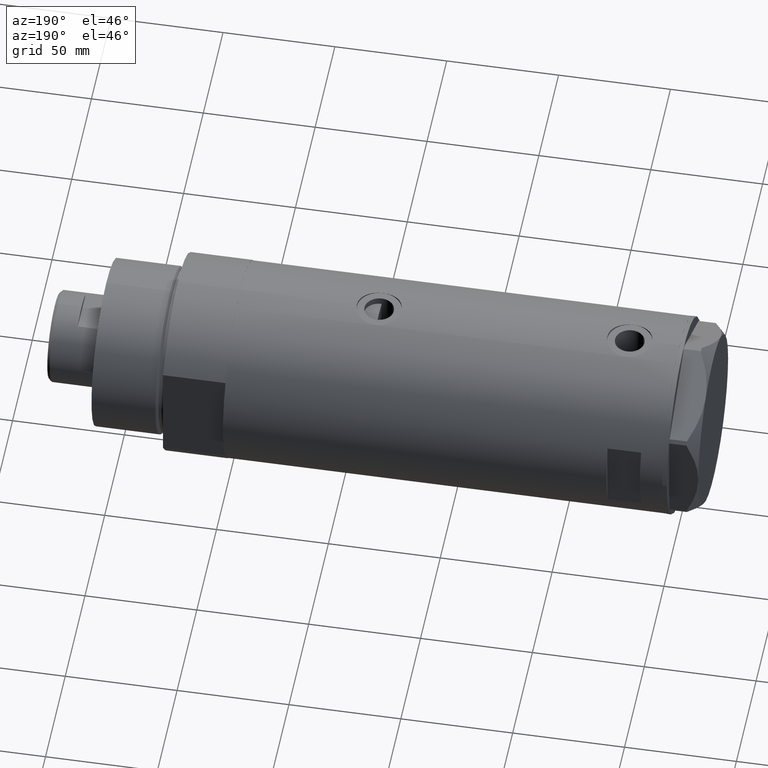
[diagram: clean part render]
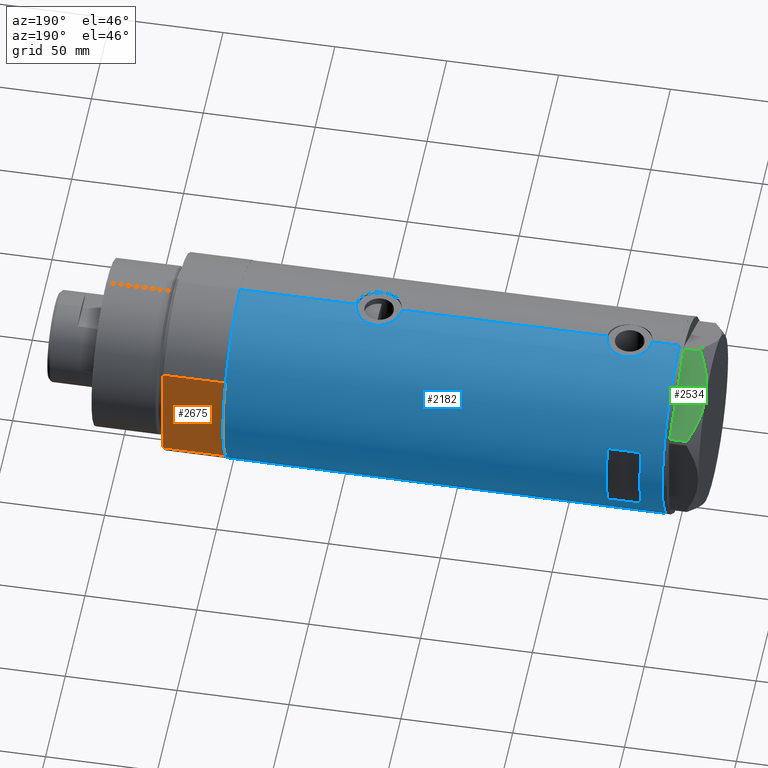
[diagram: same view with three faces highlighted in distinct colors, each labeled with its STEP entity id]
A machine part, auxiliary view with three faces highlighted in distinct colors.
Their STEP definitions:

[orange] entity #2675 — the highlighted planar face has unit normal (0, -1, -0).
#75 = ORIENTED_EDGE ( 'NONE', *, *, #2817, .F. ) ;
#107 = VECTOR ( 'NONE', #1879, 1000.000000000000000 ) ;
#120 = DIRECTION ( 'NONE',  ( 1.000000000000000000, 0.000000000000000000, 0.000000000000000000 ) ) ;
#163 = VECTOR ( 'NONE', #551, 1000.000000000000000 ) ;
#174 = VERTEX_POINT ( 'NONE', #4392 ) ;
#204 = ORIENTED_EDGE ( 'NONE', *, *, #4291, .T. ) ;
#245 = VECTOR ( 'NONE', #426, 1000.000000000000000 ) ;
#421 = CARTESIAN_POINT ( 'NONE',  ( -23.01629857296780557, 37.50000000000000000, 0.000000000000000000 ) ) ;
#426 = DIRECTION ( 'NONE',  ( 1.000000000000000000, 0.000000000000000000, 0.000000000000000000 ) ) ;
#444 = PLANE ( 'NONE',  #1271 ) ;
#459 = CARTESIAN_POINT ( 'NONE',  ( -23.01629857296780557, 37.50000000000000000, 0.000000000000000000 ) ) ;
#503 = LINE ( 'NONE', #2320, #3986 ) ;
#530 = ORIENTED_EDGE ( 'NONE', *, *, #2639, .T. ) ;
#536 = VECTOR ( 'NONE', #627, 1000.000000000000000 ) ;
#551 = DIRECTION ( 'NONE',  ( 1.000000000000000000, 0.000000000000000000, 0.000000000000000000 ) ) ;
#578 = DIRECTION ( 'NONE',  ( -0.000000000000000000, -0.000000000000000000, 1.000000000000000000 ) ) ;
#627 = DIRECTION ( 'NONE',  ( 1.000000000000000000, 0.000000000000000000, 0.000000000000000000 ) ) ;
#659 = CARTESIAN_POINT ( 'NONE',  ( 0.000000000000000000, 37.50000000000000000, 27.89999999999999858 ) ) ;
#931 = ORIENTED_EDGE ( 'NONE', *, *, #1971, .T. ) ;
#947 = CARTESIAN_POINT ( 'NONE',  ( -23.01629857296780557, 37.50000000000000000, 0.000000000000000000 ) ) ;
#1090 = VERTEX_POINT ( 'NONE', #1195 ) ;
#1114 = EDGE_LOOP ( 'NONE', ( #530, #931, #4452, #1641, #75, #2647, #204 ) ) ;
#1195 = CARTESIAN_POINT ( 'NONE',  ( -13.91941090707505957, 37.50000000000000000, 0.000000000000000000 ) ) ;
#1271 = AXIS2_PLACEMENT_3D ( 'NONE', #3640, #2978, #3999 ) ;
#1525 = VERTEX_POINT ( 'NONE', #2234 ) ;
#1610 = VERTEX_POINT ( 'NONE', #2589 ) ;
#1641 = ORIENTED_EDGE ( 'NONE', *, *, #3108, .F. ) ;
#1821 = EDGE_CURVE ( 'NONE', #174, #1090, #2684, .T. ) ;
#1863 = FACE_OUTER_BOUND ( 'NONE', #1114, .T. ) ;
#1879 = DIRECTION ( 'NONE',  ( -0.000000000000000000, -0.000000000000000000, 1.000000000000000000 ) ) ;
#1916 = CARTESIAN_POINT ( 'NONE',  ( -23.01629857296780557, 37.50000000000000000, 27.89999999999999858 ) ) ;
#1971 = EDGE_CURVE ( 'NONE', #2030, #4198, #3983, .T. ) ;
#2006 = VECTOR ( 'NONE', #4274, 1000.000000000000000 ) ;
#2030 = VERTEX_POINT ( 'NONE', #659 ) ;
#2234 = CARTESIAN_POINT ( 'NONE',  ( 23.01629857296780557, 37.50000000000000000, 0.000000000000000000 ) ) ;
#2320 = CARTESIAN_POINT ( 'NONE',  ( 23.01629857296780557, 37.50000000000000000, 0.000000000000000000 ) ) ;
#2554 = VERTEX_POINT ( 'NONE', #3832 ) ;
#2589 = CARTESIAN_POINT ( 'NONE',  ( -23.01629857296780557, 37.50000000000000000, 27.89999999999999858 ) ) ;
#2639 = EDGE_CURVE ( 'NONE', #1610, #2030, #3951, .T. ) ;
#2647 = ORIENTED_EDGE ( 'NONE', *, *, #1821, .F. ) ;
#2675 = ADVANCED_FACE ( 'NONE', ( #1863 ), #444, .F. ) ;
#2684 = LINE ( 'NONE', #947, #2006 ) ;
#2817 = EDGE_CURVE ( 'NONE', #1090, #2554, #3761, .T. ) ;
#2825 = CARTESIAN_POINT ( 'NONE',  ( 23.01629857296780557, 37.50000000000000000, 27.89999999999999858 ) ) ;
#2978 = DIRECTION ( 'NONE',  ( 0.000000000000000000, -1.000000000000000000, 0.000000000000000000 ) ) ;
#3108 = EDGE_CURVE ( 'NONE', #2554, #1525, #3228, .T. ) ;
#3228 = LINE ( 'NONE', #421, #3977 ) ;
#3640 = CARTESIAN_POINT ( 'NONE',  ( -23.01629857296780557, 37.50000000000000000, 0.000000000000000000 ) ) ;
#3761 = LINE ( 'NONE', #4070, #536 ) ;
#3832 = CARTESIAN_POINT ( 'NONE',  ( 13.91941090707505957, 37.50000000000000000, 0.000000000000000000 ) ) ;
#3951 = LINE ( 'NONE', #4311, #245 ) ;
#3977 = VECTOR ( 'NONE', #120, 1000.000000000000000 ) ;
#3983 = LINE ( 'NONE', #1916, #163 ) ;
#3986 = VECTOR ( 'NONE', #578, 1000.000000000000000 ) ;
#3999 = DIRECTION ( 'NONE',  ( 0.000000000000000000, -0.000000000000000000, -1.000000000000000000 ) ) ;
#4070 = CARTESIAN_POINT ( 'NONE',  ( -23.01629857296780557, 37.50000000000000000, 0.000000000000000000 ) ) ;
#4198 = VERTEX_POINT ( 'NONE', #2825 ) ;
#4274 = DIRECTION ( 'NONE',  ( 1.000000000000000000, 0.000000000000000000, 0.000000000000000000 ) ) ;
#4291 = EDGE_CURVE ( 'NONE', #174, #1610, #4349, .T. ) ;
#4311 = CARTESIAN_POINT ( 'NONE',  ( -23.01629857296780557, 37.50000000000000000, 27.89999999999999858 ) ) ;
#4349 = LINE ( 'NONE', #459, #107 ) ;
#4392 = CARTESIAN_POINT ( 'NONE',  ( -23.01629857296780557, 37.50000000000000000, 0.000000000000000000 ) ) ;
#4452 = ORIENTED_EDGE ( 'NONE', *, *, #4536, .F. ) ;
#4536 = EDGE_CURVE ( 'NONE', #1525, #4198, #503, .T. ) ;

[blue] entity #2182 — the highlighted cylindrical surface (partial cylindrical patch) has radius 44 mm, axis along (-1, -0, 0).
#13 = CARTESIAN_POINT ( 'NONE',  ( -43.74833112883977293, 4.708208586952001617, 78.33050383508880543 ) ) ;
#25 = CARTESIAN_POINT ( 'NONE',  ( 43.94229162222111285, 2.275476993733910547, 66.15685535777693360 ) ) ;
#26 = CARTESIAN_POINT ( 'NONE',  ( -43.88968326835893663, 3.132363423941624259, -56.47620767643520168 ) ) ;
#57 = CARTESIAN_POINT ( 'NONE',  ( -43.95549163632549750, 2.014511215452027937, 68.26941044295020333 ) ) ;
#71 = CARTESIAN_POINT ( 'NONE',  ( 42.99303682946563043, 9.360292926890506848, 72.36575779792798357 ) ) ;
#74 = CARTESIAN_POINT ( 'NONE',  ( -43.83576802966639008, 3.813209221108468938, -66.86865490354712449 ) ) ;
#97 = CARTESIAN_POINT ( 'NONE',  ( 43.13962074468734897, 8.660138848900670538, 80.91089741163936822 ) ) ;
#104 = CARTESIAN_POINT ( 'NONE',  ( 15.96871942267132027, 40.99999999999999289, 88.20000000000000284 ) ) ;
#115 = CARTESIAN_POINT ( 'NONE',  ( 43.27871541412904577, 7.937063204555981244, -30.00825002753968107 ) ) ;
#129 = ORIENTED_EDGE ( 'NONE', *, *, #2990, .T. ) ;
#138 = VERTEX_POINT ( 'NONE', #924 ) ;
#146 = CARTESIAN_POINT ( 'NONE',  ( -43.80687348212602217, 4.128385987736840512, -66.61048743310966813 ) ) ;
#153 = FACE_OUTER_BOUND ( 'NONE', #2035, .T. ) ;
#159 = CARTESIAN_POINT ( 'NONE',  ( 43.88297407487991109, 3.222431612395382228, -45.57228202029342157 ) ) ;
#203 = CARTESIAN_POINT ( 'NONE',  ( 42.86396777580258544, 9.934664719553399692, -34.78423800973479274 ) ) ;
#206 = EDGE_CURVE ( 'NONE', #416, #3964, #4369, .T. ) ;
#298 = CARTESIAN_POINT ( 'NONE',  ( 44.00000000000000000, 0.000000000000000000, -98.20000000000000284 ) ) ;
#305 = CARTESIAN_POINT ( 'NONE',  ( -43.59867737633045692, 5.931302618788640402, -63.91249495029889260 ) ) ;
#316 = CARTESIAN_POINT ( 'NONE',  ( 43.97062489912107708, 1.639461988184801156, -26.22985373334014625 ) ) ;
#320 = CIRCLE ( 'NONE', #3407, 44.00000000000000000 ) ;
#336 = CARTESIAN_POINT ( 'NONE',  ( -43.57657963456318839, 6.089610171536609329, -60.47821460419189066 ) ) ;
#339 = CARTESIAN_POINT ( 'NONE',  ( -43.88883895882799635, 3.130924084324101297, 68.78687544251856423 ) ) ;
#355 = CARTESIAN_POINT ( 'NONE',  ( -43.59995593514495482, 5.920088975424572908, -59.88582091308221322 ) ) ;
#365 = DIRECTION ( 'NONE',  ( 1.000000000000000000, -8.881784197001252323E-16, 0.000000000000000000 ) ) ;
#380 = CARTESIAN_POINT ( 'NONE',  ( -43.57657963456318839, 6.089610171536606664, 75.62178539580813208 ) ) ;
#406 = CARTESIAN_POINT ( 'NONE',  ( -43.71938389712227746, 4.966728892888062852, 78.01614452340872674 ) ) ;
#416 = VERTEX_POINT ( 'NONE', #298 ) ;
#440 = CARTESIAN_POINT ( 'NONE',  ( 43.07641822757289418, 8.969229373860565957, 80.33396235790173989 ) ) ;
#446 = VERTEX_POINT ( 'NONE', #3155 ) ;
#450 = CARTESIAN_POINT ( 'NONE',  ( 44.00000000000000000, 0.000000000000000000, 98.20000000000000284 ) ) ;
#454 = CARTESIAN_POINT ( 'NONE',  ( 43.17306590853065273, 8.492365194390522731, -30.80987467306545113 ) ) ;
#457 = EDGE_CURVE ( 'NONE', #2223, #1633, #3024, .T. ) ;
#462 = CARTESIAN_POINT ( 'NONE',  ( 42.92259096922160211, 9.678247830257127760, 78.50005993028796070 ) ) ;
#500 = CARTESIAN_POINT ( 'NONE',  ( 43.77939001959705223, 4.442287752090387620, -45.08306177559163075 ) ) ;
#505 = CARTESIAN_POINT ( 'NONE',  ( 43.77712723341632994, 4.432620652875498557, 84.86995009759974096 ) ) ;
#508 = CARTESIAN_POINT ( 'NONE',  ( -43.95549163632549750, 2.014511215452028825, -67.83058955704980519 ) ) ;
#516 = CARTESIAN_POINT ( 'NONE',  ( 0.000000000000000000, 0.000000000000000000, -98.20000000000000284 ) ) ;
#527 = CIRCLE ( 'NONE', #3750, 44.00000000000000000 ) ;
#549 = ORIENTED_EDGE ( 'NONE', *, *, #4338, .F. ) ;
#612 = VECTOR ( 'NONE', #1156, 1000.000000000000000 ) ;
#613 = LINE ( 'NONE', #4471, #1579 ) ;
#646 = CARTESIAN_POINT ( 'NONE',  ( 43.71659050864931828, 5.015880325000608764, 67.22433174036180503 ) ) ;
#649 = CARTESIAN_POINT ( 'NONE',  ( -43.55973179376098869, 6.209370339246239823, -62.72061767059870618 ) ) ;
#665 = VERTEX_POINT ( 'NONE', #1625 ) ;
#679 = CARTESIAN_POINT ( 'NONE',  ( -44.00000000000000000, 5.388445781992449847E-15, -68.15000000000001990 ) ) ;
#693 = DIRECTION ( 'NONE',  ( 1.000000000000000000, 0.000000000000000000, 0.000000000000000000 ) ) ;
#707 = CARTESIAN_POINT ( 'NONE',  ( -43.94507179847653333, 2.206027755801677870, 80.05131522281796208 ) ) ;
#729 = CARTESIAN_POINT ( 'NONE',  ( -43.55973179376100290, 6.209370339246232717, 73.37938232940132366 ) ) ;
#744 = LINE ( 'NONE', #2478, #752 ) ;
#748 = CARTESIAN_POINT ( 'NONE',  ( -43.80646232387288563, 4.132500855894024383, 78.90645585403358098 ) ) ;
#752 = VECTOR ( 'NONE', #3517, 1000.000000000000000 ) ;
#771 = EDGE_LOOP ( 'NONE', ( #549, #1318, #810, #1593 ) ) ;
#799 = CARTESIAN_POINT ( 'NONE',  ( 43.13962074468733476, 8.660138848900677644, -31.08910258836065665 ) ) ;
#810 = ORIENTED_EDGE ( 'NONE', *, *, #3222, .F. ) ;
#813 = LINE ( 'NONE', #1893, #4042 ) ;
#819 = CARTESIAN_POINT ( 'NONE',  ( 42.86370458161098185, 9.935807968041572735, -37.40904550429866049 ) ) ;
#850 = LINE ( 'NONE', #2521, #1954 ) ;
#852 = CARTESIAN_POINT ( 'NONE',  ( -15.96871942267132027, 40.99999999999999289, 88.20000000000000284 ) ) ;
#869 = CARTESIAN_POINT ( 'NONE',  ( 43.61291203895919466, 5.829986172017925128, -44.23128710786829743 ) ) ;
#894 = CARTESIAN_POINT ( 'NONE',  ( 43.04663170950394857, 9.110642017076081345, -40.23547502190394454 ) ) ;
#896 = CARTESIAN_POINT ( 'NONE',  ( 44.00000000000000000, 0.000000000000000000, -98.20000000000000284 ) ) ;
#906 = ORIENTED_EDGE ( 'NONE', *, *, #3344, .T. ) ;
#922 = CARTESIAN_POINT ( 'NONE',  ( 43.68141895191831026, 5.292250119194736868, -27.60895047714807049 ) ) ;
#924 = CARTESIAN_POINT ( 'NONE',  ( 44.00000000000000000, -2.552687571866728611E-15, 65.90000000000001990 ) ) ;
#993 = CARTESIAN_POINT ( 'NONE',  ( 43.92466059386729427, 2.593004216484783964, 66.23643330328646073 ) ) ;
#997 = LINE ( 'NONE', #4490, #2301 ) ;
#1012 = CARTESIAN_POINT ( 'NONE',  ( 43.17277162440354488, 8.493905080221262338, 70.61212964891505806 ) ) ;
#1023 = CARTESIAN_POINT ( 'NONE',  ( -44.00000000000000711, 0.4135148353567996149, 80.45000000000001705 ) ) ;
#1040 = CARTESIAN_POINT ( 'NONE',  ( -44.00000000000000000, 6.472851849715296073E-16, -55.65000000000000568 ) ) ;
#1070 = CARTESIAN_POINT ( 'NONE',  ( -43.83576802966640429, 3.813209221108459168, 69.23134509645289825 ) ) ;
#1080 = DIRECTION ( 'NONE',  ( 0.000000000000000000, 0.000000000000000000, 1.000000000000000000 ) ) ;
#1086 = CARTESIAN_POINT ( 'NONE',  ( -43.66555354895124452, 5.415612800338318600, 77.32656357177557993 ) ) ;
#1124 = VERTEX_POINT ( 'NONE', #1967 ) ;
#1156 = DIRECTION ( 'NONE',  ( -0.000000000000000000, -0.000000000000000000, -1.000000000000000000 ) ) ;
#1157 = CARTESIAN_POINT ( 'NONE',  ( 43.97062489912108418, 1.639461988184795604, 85.77014626665985020 ) ) ;
#1172 = CARTESIAN_POINT ( 'NONE',  ( 43.39051256276903246, 7.301963662770314833, -29.25975531787057804 ) ) ;
#1178 = CARTESIAN_POINT ( 'NONE',  ( -43.99413512814552263, 0.8228129877960710381, -68.10908314325826041 ) ) ;
#1213 = DIRECTION ( 'NONE',  ( 0.000000000000000000, 0.000000000000000000, 1.000000000000000000 ) ) ;
#1221 = CARTESIAN_POINT ( 'NONE',  ( 43.98503110884232825, 1.314607393679877445, -46.03470984345550221 ) ) ;
#1240 = CARTESIAN_POINT ( 'NONE',  ( 42.96879251999280314, 9.470609476412120031, -39.32722899941056482 ) ) ;
#1263 = CARTESIAN_POINT ( 'NONE',  ( 43.04652664061919864, 9.111152824375430725, -31.96541990785411969 ) ) ;
#1318 = ORIENTED_EDGE ( 'NONE', *, *, #2311, .F. ) ;
#1322 = DIRECTION ( 'NONE',  ( 0.000000000000000000, 0.000000000000000000, 1.000000000000000000 ) ) ;
#1355 = CARTESIAN_POINT ( 'NONE',  ( 44.00000000000002132, 0.3269372501759380545, -26.10000000000001918 ) ) ;
#1373 = CARTESIAN_POINT ( 'NONE',  ( -43.62981559643959883, 5.696090409300659019, -64.48051365414528391 ) ) ;
#1378 = CARTESIAN_POINT ( 'NONE',  ( -43.87596296923810968, 3.305851531861728976, 68.89196414123739487 ) ) ;
#1380 = CARTESIAN_POINT ( 'NONE',  ( 43.57805684119164624, 6.103282219787168117, -28.15183798352141054 ) ) ;
#1394 = CARTESIAN_POINT ( 'NONE',  ( -43.94507179847653333, 2.206027755801681867, -56.04868477718203224 ) ) ;
#1400 = CARTESIAN_POINT ( 'NONE',  ( -44.00000000000000000, 5.388445781982983516E-15, 67.95000000000001705 ) ) ;
#1408 = DIRECTION ( 'NONE',  ( -0.000000000000000000, -0.000000000000000000, -1.000000000000000000 ) ) ;
#1418 = CARTESIAN_POINT ( 'NONE',  ( -43.91413175532568403, 2.773555030353458850, -56.28415761633254277 ) ) ;
#1427 = CARTESIAN_POINT ( 'NONE',  ( -43.67867890111967455, 5.309046579850785541, 70.89577220923978018 ) ) ;
#1437 = CARTESIAN_POINT ( 'NONE',  ( 43.85884410404901246, 3.534688330930384925, 66.53980191249667087 ) ) ;
#1444 = CARTESIAN_POINT ( 'NONE',  ( -43.55386785759471024, 6.249847571481740971, 74.61054947617955690 ) ) ;
#1480 = CARTESIAN_POINT ( 'NONE',  ( 43.92756755766649235, 2.604528169608113064, 85.57713411902345513 ) ) ;
#1503 = CARTESIAN_POINT ( 'NONE',  ( 43.07598348983507464, 8.971306953823011909, 71.47030576812815639 ) ) ;
#1524 = CARTESIAN_POINT ( 'NONE',  ( 43.13897484505559987, 8.663345277311671921, -41.10529600060514355 ) ) ;
#1530 = CARTESIAN_POINT ( 'NONE',  ( 44.00000000000000000, 2.836945177865671897E-15, -46.10000000000000853 ) ) ;
#1543 = CARTESIAN_POINT ( 'NONE',  ( 44.00000000000002132, 0.6630566900259828866, -46.10000000000002984 ) ) ;
#1579 = VECTOR ( 'NONE', #1658, 1000.000000000000000 ) ;
#1593 = ORIENTED_EDGE ( 'NONE', *, *, #1845, .F. ) ;
#1596 = CARTESIAN_POINT ( 'NONE',  ( 43.94229162222111285, 2.275476993733913655, -45.84314464222307350 ) ) ;
#1612 = CARTESIAN_POINT ( 'NONE',  ( 42.84850876528982155, 10.00026482975808051, -35.44941694529577347 ) ) ;
#1625 = CARTESIAN_POINT ( 'NONE',  ( 15.96871942267132027, 40.99999999999999289, 73.20000000000000284 ) ) ;
#1633 = VERTEX_POINT ( 'NONE', #3016 ) ;
#1657 = VECTOR ( 'NONE', #2614, 1000.000000000000000 ) ;
#1658 = DIRECTION ( 'NONE',  ( 0.000000000000000000, 0.000000000000000000, 1.000000000000000000 ) ) ;
#1661 = CARTESIAN_POINT ( 'NONE',  ( 44.00000000000000000, -3.917142467416489149E-21, -26.10000000000000497 ) ) ;
#1713 = AXIS2_PLACEMENT_3D ( 'NONE', #2535, #3936, #2914 ) ;
#1714 = CARTESIAN_POINT ( 'NONE',  ( 43.98503110884232115, 1.314607393679875669, 65.96529015654452621 ) ) ;
#1745 = CARTESIAN_POINT ( 'NONE',  ( -43.55963022497232373, 6.210088036293401004, -61.08353836982577434 ) ) ;
#1748 = CARTESIAN_POINT ( 'NONE',  ( -43.92459115390705193, 2.581892149020998950, 68.50454172926654905 ) ) ;
#1775 = ORIENTED_EDGE ( 'NONE', *, *, #3079, .F. ) ;
#1780 = CARTESIAN_POINT ( 'NONE',  ( 44.00000000000000000, -2.552687571866728611E-15, 65.90000000000001990 ) ) ;
#1792 = CARTESIAN_POINT ( 'NONE',  ( -43.97181775256600389, 1.624866278047415680, 68.15107081614905837 ) ) ;
#1812 = CARTESIAN_POINT ( 'NONE',  ( -43.58362292239463187, 6.039157555656604615, -60.27736421551959722 ) ) ;
#1816 = CARTESIAN_POINT ( 'NONE',  ( -43.55382423478827292, 6.250151562062086441, 73.79410470512661391 ) ) ;
#1833 = CARTESIAN_POINT ( 'NONE',  ( 44.00000000000000000, -3.917104602093038540E-21, 85.90000000000000568 ) ) ;
#1835 = CARTESIAN_POINT ( 'NONE',  ( -15.96871942267132027, 40.99999999999999289, 73.20000000000000284 ) ) ;
#1845 = EDGE_CURVE ( 'NONE', #3103, #2767, #527, .T. ) ;
#1850 = ORIENTED_EDGE ( 'NONE', *, *, #2317, .T. ) ;
#1857 = CARTESIAN_POINT ( 'NONE',  ( 43.04652664061922707, 9.111152824375430725, 80.03458009214594426 ) ) ;
#1860 = CARTESIAN_POINT ( 'NONE',  ( -43.74805001749253819, 4.711035428619393173, -66.02776064125799849 ) ) ;
#1881 = CARTESIAN_POINT ( 'NONE',  ( 43.57805684119164624, 6.103282219787165452, 83.84816201647861078 ) ) ;
#1893 = CARTESIAN_POINT ( 'NONE',  ( -44.00000000000000000, 5.388445916248353619E-15, -98.20000000000000284 ) ) ;
#1903 = CARTESIAN_POINT ( 'NONE',  ( 44.00000000000000711, 0.3269372501759374994, 85.90000000000001990 ) ) ;
#1922 = CARTESIAN_POINT ( 'NONE',  ( 43.17306590853067405, 8.492365194390513849, 81.19012532693457729 ) ) ;
#1924 = CARTESIAN_POINT ( 'NONE',  ( -43.71901936021025392, 4.969830049220633761, -65.71167637698874842 ) ) ;
#1938 = VERTEX_POINT ( 'NONE', #2560 ) ;
#1941 = CARTESIAN_POINT ( 'NONE',  ( 43.46520118248736253, 6.843279251446920064, -43.39898327212166151 ) ) ;
#1954 = VECTOR ( 'NONE', #2187, 1000.000000000000000 ) ;
#1963 = CARTESIAN_POINT ( 'NONE',  ( 43.35294442506074120, 7.532526048221052761, -42.70935414491112425 ) ) ;
#1967 = CARTESIAN_POINT ( 'NONE',  ( -44.00000000000000000, 4.742435893011557518E-16, 80.45000000000001705 ) ) ;
#1989 = EDGE_CURVE ( 'NONE', #3964, #446, #3219, .T. ) ;
#2035 = EDGE_LOOP ( 'NONE', ( #129, #4276, #3021, #906, #3723, #1850, #2906, #2756, #1775, #3018, #4550, #2397 ) ) ;
#2053 = CARTESIAN_POINT ( 'NONE',  ( 43.61291203895921598, 5.829986172017926016, 67.76871289213170257 ) ) ;
#2057 = CARTESIAN_POINT ( 'NONE',  ( -43.58221825186232223, 6.049526113783029402, -63.52262970817960763 ) ) ;
#2064 = CARTESIAN_POINT ( 'NONE',  ( 43.71454618729809738, 5.012329428678962806, -27.44063025941690270 ) ) ;
#2075 = DIRECTION ( 'NONE',  ( 1.000000000000000000, 0.000000000000000000, 0.000000000000000000 ) ) ;
#2080 = CARTESIAN_POINT ( 'NONE',  ( 15.96871942267132027, 40.99999999999999289, -98.20000000000000284 ) ) ;
#2085 = CARTESIAN_POINT ( 'NONE',  ( -43.80687348212602217, 4.128385987736833407, 69.48951256689038303 ) ) ;
#2104 = CARTESIAN_POINT ( 'NONE',  ( -43.97068415157985299, 1.617901284326948907, -55.85954871699957636 ) ) ;
#2108 = CARTESIAN_POINT ( 'NONE',  ( -43.55963022497231663, 6.210088036293396563, 75.01646163017424840 ) ) ;
#2124 = CARTESIAN_POINT ( 'NONE',  ( -43.95446647384544292, 2.010857111636600969, -55.97875773636064878 ) ) ;
#2128 = CARTESIAN_POINT ( 'NONE',  ( -43.64122538274737195, 5.608286354294323317, 76.96611386963340351 ) ) ;
#2150 = CARTESIAN_POINT ( 'NONE',  ( -43.61859254253774054, 5.782454868881351295, 76.59786400894466851 ) ) ;
#2182 = ADVANCED_FACE ( 'NONE', ( #3286, #153 ), #4002, .T. ) ;
#2187 = DIRECTION ( 'NONE',  ( 0.000000000000000000, 0.000000000000000000, 1.000000000000000000 ) ) ;
#2189 = CARTESIAN_POINT ( 'NONE',  ( 43.39051256276903246, 7.301963662770311281, 82.74024468212945749 ) ) ;
#2203 = CARTESIAN_POINT ( 'NONE',  ( 43.24261242176996234, 8.130827601038834729, -30.26944813145831148 ) ) ;
#2211 = CARTESIAN_POINT ( 'NONE',  ( 42.86396777580258544, 9.934664719553397916, 77.21576199026523568 ) ) ;
#2223 = VERTEX_POINT ( 'NONE', #450 ) ;
#2235 = CARTESIAN_POINT ( 'NONE',  ( 42.84863276153905787, 9.999733523508361088, 75.24130095249223871 ) ) ;
#2266 = CARTESIAN_POINT ( 'NONE',  ( 44.00000000000000000, 2.836945177865671897E-15, -46.10000000000000853 ) ) ;
#2270 = CARTESIAN_POINT ( 'NONE',  ( -44.00000000000000000, 5.388445916248353619E-15, -98.20000000000000284 ) ) ;
#2290 = CARTESIAN_POINT ( 'NONE',  ( 42.90786968859021044, 9.742642423712174704, -38.37802296547129544 ) ) ;
#2301 = VECTOR ( 'NONE', #1322, 1000.000000000000000 ) ;
#2311 = EDGE_CURVE ( 'NONE', #665, #4026, #3328, .T. ) ;
#2317 = EDGE_CURVE ( 'NONE', #1124, #1633, #813, .T. ) ;
#2359 = AXIS2_PLACEMENT_3D ( 'NONE', #516, #1213, #2620 ) ;
#2376 = B_SPLINE_CURVE_WITH_KNOTS ( 'NONE', 3,
 ( #1780, #3180, #1714, #25, #993, #2385, #1437, #3475, #646, #2053, #3449, #3117, #4514, #2747, #4163, #1012, #2406, #1503, #2523, #71, #3993, #4327, #3583, #3610, #2235, #3273, #2211, #462, #3249, #1857, #440, #97, #1922, #2903, #2590, #3923, #2189, #3563, #1881, #2944, #3633, #505, #4305, #3297, #1480, #1157, #3650, #2545, #1903, #1833 ),
 .UNSPECIFIED., .F., .F.,
 ( 4, 2, 2, 2, 2, 2, 2, 2, 2, 2, 2, 2, 2, 2, 2, 2, 2, 2, 2, 2, 2, 2, 2, 2, 4 ),
 ( 2.479523669370822448E-18, 0.001960456513248879339, 0.002940684769873313370, 0.003920913026497747401, 0.005881369539746631077, 0.006861597796371071180, 0.007841826052995510415, 0.009802282566244392356, 0.01078251082286883072, 0.01176273907949326909, 0.01274296733611770746, 0.01372319559274214583, 0.01568365210599106593, 0.01764410861923998430, 0.01960456513248890267, 0.02058479338911334278, 0.02156502164573777941, 0.02254524990236221951, 0.02352547815898665615, 0.02548593467223552941, 0.02646616292885996952, 0.02744639118548440615, 0.02940684769873327942, 0.03038707595535771258, 0.03136730421198213881 ),
 .UNSPECIFIED. ) ;
#2385 = CARTESIAN_POINT ( 'NONE',  ( 43.88297407487991109, 3.222431612395379119, 66.42771797970659975 ) ) ;
#2397 = ORIENTED_EDGE ( 'NONE', *, *, #206, .F. ) ;
#2406 = CARTESIAN_POINT ( 'NONE',  ( 43.13897484505560698, 8.663345277311673698, 70.89470399939492040 ) ) ;
#2408 = CARTESIAN_POINT ( 'NONE',  ( -43.99417607942193342, 0.8200150578638759624, -55.69063327483257808 ) ) ;
#2414 = CARTESIAN_POINT ( 'NONE',  ( -43.64133398152736021, 5.607447751852152606, 71.43213954987568570 ) ) ;
#2429 = CARTESIAN_POINT ( 'NONE',  ( 0.000000000000000000, 0.000000000000000000, -98.20000000000000284 ) ) ;
#2434 = CARTESIAN_POINT ( 'NONE',  ( -43.67863969133946256, 5.309394106110041811, -58.59620703497452610 ) ) ;
#2459 = CARTESIAN_POINT ( 'NONE',  ( -43.80646232387289274, 4.132500855894034153, -57.19354414596645597 ) ) ;
#2463 = CARTESIAN_POINT ( 'NONE',  ( -43.59995593514495482, 5.920088975424566691, 76.21417908691780951 ) ) ;
#2475 = EDGE_CURVE ( 'NONE', #446, #138, #744, .T. ) ;
#2478 = CARTESIAN_POINT ( 'NONE',  ( 44.00000000000000000, 0.000000000000000000, -98.20000000000000284 ) ) ;
#2481 = CARTESIAN_POINT ( 'NONE',  ( -43.99999999999997158, 0.4081702738789203533, 67.94999999999997442 ) ) ;
#2494 = CARTESIAN_POINT ( 'NONE',  ( -44.00000000000000000, 5.388445781982983516E-15, 67.95000000000001705 ) ) ;
#2506 = CARTESIAN_POINT ( 'NONE',  ( -43.97754480947185129, 1.419697478855583617, 80.29003276052073090 ) ) ;
#2521 = CARTESIAN_POINT ( 'NONE',  ( -15.96871942267132027, 40.99999999999999289, -98.20000000000000284 ) ) ;
#2523 = CARTESIAN_POINT ( 'NONE',  ( 43.04663170950395568, 9.110642017076083121, 71.76452497809607678 ) ) ;
#2535 = CARTESIAN_POINT ( 'NONE',  ( 0.000000000000000000, 0.000000000000000000, 73.20000000000018758 ) ) ;
#2545 = CARTESIAN_POINT ( 'NONE',  ( 43.99635668041008074, 0.6544833911834539997, 85.88400708477533385 ) ) ;
#2560 = CARTESIAN_POINT ( 'NONE',  ( -44.00000000000000000, 6.472851849715296073E-16, -55.65000000000000568 ) ) ;
#2567 = CARTESIAN_POINT ( 'NONE',  ( -43.97181775256600389, 1.624866278047417012, -67.94892918385096436 ) ) ;
#2590 = CARTESIAN_POINT ( 'NONE',  ( 43.27871541412905287, 7.937063204555986573, 81.99174997246032603 ) ) ;
#2602 = CARTESIAN_POINT ( 'NONE',  ( 43.92466059386730137, 2.593004216484785740, -45.76356669671356059 ) ) ;
#2614 = DIRECTION ( 'NONE',  ( 0.000000000000000000, 0.000000000000000000, 1.000000000000000000 ) ) ;
#2620 = DIRECTION ( 'NONE',  ( 1.000000000000000000, 0.000000000000000000, 0.000000000000000000 ) ) ;
#2626 = CARTESIAN_POINT ( 'NONE',  ( 42.92624534982631701, 9.661626915142814909, -38.70008004144708735 ) ) ;
#2655 = CARTESIAN_POINT ( 'NONE',  ( 43.07641822757289418, 8.969229373860574839, -31.66603764209828498 ) ) ;
#2742 = CARTESIAN_POINT ( 'NONE',  ( 43.88561577393361546, 3.228056721358710135, -26.61278334272174817 ) ) ;
#2747 = CARTESIAN_POINT ( 'NONE',  ( 43.35294442506074120, 7.532526048221051873, 69.29064585508892549 ) ) ;
#2752 = CARTESIAN_POINT ( 'NONE',  ( -43.64133398152736021, 5.607447751852158824, -64.66786045012435125 ) ) ;
#2756 = ORIENTED_EDGE ( 'NONE', *, *, #3763, .F. ) ;
#2767 = VERTEX_POINT ( 'NONE', #104 ) ;
#2775 = CARTESIAN_POINT ( 'NONE',  ( -43.71938389712227035, 4.966728892888067293, -58.08385547659131021 ) ) ;
#2811 = CARTESIAN_POINT ( 'NONE',  ( -43.74805001749254529, 4.711035428619386956, 70.07223935874202425 ) ) ;
#2835 = CARTESIAN_POINT ( 'NONE',  ( -43.59867737633045692, 5.931302618788633296, 72.18750504970115855 ) ) ;
#2851 = CARTESIAN_POINT ( 'NONE',  ( -43.61859254253774054, 5.782454868881357513, -59.50213599105533291 ) ) ;
#2857 = CARTESIAN_POINT ( 'NONE',  ( -43.88968326835893663, 3.132363423941621150, 79.62379232356479974 ) ) ;
#2903 = CARTESIAN_POINT ( 'NONE',  ( 43.24261242176996234, 8.130827601038829400, 81.73055186854172405 ) ) ;
#2906 = ORIENTED_EDGE ( 'NONE', *, *, #457, .F. ) ;
#2907 = CARTESIAN_POINT ( 'NONE',  ( -43.67867890111968876, 5.309046579850795311, -65.20422779076025677 ) ) ;
#2914 = DIRECTION ( 'NONE',  ( 0.000000000000000000, 1.000000000000000000, -4.731064025391292434E-15 ) ) ;
#2919 = CARTESIAN_POINT ( 'NONE',  ( 43.35257020184194232, 7.523219862841651562, -29.50397445915864481 ) ) ;
#2926 = CARTESIAN_POINT ( 'NONE',  ( -44.00000000000000711, 0.4081702738789189655, -68.15000000000003411 ) ) ;
#2944 = CARTESIAN_POINT ( 'NONE',  ( 43.68141895191831736, 5.292250119194734204, 84.39104952285195793 ) ) ;
#2986 = CARTESIAN_POINT ( 'NONE',  ( 43.07598348983508174, 8.971306953823013686, -40.52969423187187914 ) ) ;
#2990 = EDGE_CURVE ( 'NONE', #416, #3191, #320, .T. ) ;
#3012 = CARTESIAN_POINT ( 'NONE',  ( 42.92259096922158790, 9.678247830257131312, -33.49994006971207483 ) ) ;
#3016 = CARTESIAN_POINT ( 'NONE',  ( -44.00000000000000000, 5.388445916248353619E-15, 98.20000000000000284 ) ) ;
#3018 = ORIENTED_EDGE ( 'NONE', *, *, #2475, .F. ) ;
#3020 = CARTESIAN_POINT ( 'NONE',  ( -44.00000000000000000, 5.388445916248353619E-15, -98.20000000000000284 ) ) ;
#3021 = ORIENTED_EDGE ( 'NONE', *, *, #3930, .F. ) ;
#3024 = CIRCLE ( 'NONE', #3242, 44.00000000000000000 ) ;
#3043 = LINE ( 'NONE', #3020, #1657 ) ;
#3079 = EDGE_CURVE ( 'NONE', #138, #3812, #2376, .T. ) ;
#3080 = DIRECTION ( 'NONE',  ( 0.000000000000000000, 0.000000000000000000, 1.000000000000000000 ) ) ;
#3103 = VERTEX_POINT ( 'NONE', #852 ) ;
#3117 = CARTESIAN_POINT ( 'NONE',  ( 43.50265731352001808, 6.601850423195591233, 68.38180832701048928 ) ) ;
#3129 = CARTESIAN_POINT ( 'NONE',  ( -43.97068415157983878, 1.617901284326946909, 80.24045128300046770 ) ) ;
#3148 = CARTESIAN_POINT ( 'NONE',  ( -43.99413512814552263, 0.8228129877960659311, 67.99091685674179075 ) ) ;
#3155 = CARTESIAN_POINT ( 'NONE',  ( 44.00000000000000000, -3.917142467416489149E-21, -26.10000000000000497 ) ) ;
#3170 = CARTESIAN_POINT ( 'NONE',  ( -44.00000000000000000, 4.742435893011557518E-16, 80.45000000000001705 ) ) ;
#3177 = CARTESIAN_POINT ( 'NONE',  ( 0.000000000000000000, 0.000000000000000000, 88.20000000000000284 ) ) ;
#3180 = CARTESIAN_POINT ( 'NONE',  ( 44.00000000000002132, 0.6630566900259825536, 65.90000000000003411 ) ) ;
#3191 = VERTEX_POINT ( 'NONE', #2270 ) ;
#3214 = CARTESIAN_POINT ( 'NONE',  ( -43.58221825186232223, 6.049526113783018744, 72.57737029182041510 ) ) ;
#3219 = B_SPLINE_CURVE_WITH_KNOTS ( 'NONE', 3,
 ( #2266, #1543, #1221, #1596, #2602, #159, #4008, #500, #3310, #869, #3663, #4410, #1941, #1963, #3291, #3340, #1524, #2986, #894, #4391, #1240, #2626, #2290, #819, #3361, #1612, #203, #3012, #4320, #1263, #2655, #799, #454, #2203, #115, #2919, #1172, #3625, #1380, #922, #2064, #4057, #4434, #2742, #3733, #316, #4454, #4473, #1355, #1661 ),
 .UNSPECIFIED., .F., .F.,
 ( 4, 2, 2, 2, 2, 2, 2, 2, 2, 2, 2, 2, 2, 2, 2, 2, 2, 2, 2, 2, 2, 2, 2, 2, 4 ),
 ( 2.755634020688765633E-18, 0.001960456513248879772, 0.002940684769873318574, 0.003920913026497756942, 0.005881369539746635414, 0.006861597796371073782, 0.007841826052995512150, 0.009802282566244404499, 0.01078251082286885675, 0.01176273907949330899, 0.01274296733611776297, 0.01372319559274221522, 0.01568365210599110063, 0.01764410861923998777, 0.01960456513248886798, 0.02058479338911332196, 0.02156502164573776553, 0.02254524990236220564, 0.02352547815898664574, 0.02548593467223553288, 0.02646616292885997299, 0.02744639118548441656, 0.02940684769873329329, 0.03038707595535772993, 0.03136730421198216656 ),
 .UNSPECIFIED. ) ;
#3222 = EDGE_CURVE ( 'NONE', #2767, #665, #4377, .T. ) ;
#3242 = AXIS2_PLACEMENT_3D ( 'NONE', #4531, #3824, #693 ) ;
#3249 = CARTESIAN_POINT ( 'NONE',  ( 42.96547725528407824, 9.488625330801083280, 79.12450347211071744 ) ) ;
#3253 = CARTESIAN_POINT ( 'NONE',  ( -43.91315028150559385, 2.769134003554746037, -67.50682619375406546 ) ) ;
#3254 = VERTEX_POINT ( 'NONE', #2494 ) ;
#3273 = CARTESIAN_POINT ( 'NONE',  ( 42.84850876528983576, 10.00026482975808229, 76.55058305470424784 ) ) ;
#3286 = FACE_BOUND ( 'NONE', #771, .T. ) ;
#3291 = CARTESIAN_POINT ( 'NONE',  ( 43.27822890220284080, 7.945655169171516263, -42.20725383289290278 ) ) ;
#3297 = CARTESIAN_POINT ( 'NONE',  ( 43.88561577393361546, 3.228056721358708359, 85.38721665727824472 ) ) ;
#3310 = CARTESIAN_POINT ( 'NONE',  ( 43.71659050864931828, 5.015880325000608764, -44.77566825963823050 ) ) ;
#3328 = CIRCLE ( 'NONE', #1713, 44.00000000000000000 ) ;
#3340 = CARTESIAN_POINT ( 'NONE',  ( 43.17277162440355198, 8.493905080221264114, -41.38787035108497037 ) ) ;
#3344 = EDGE_CURVE ( 'NONE', #1938, #3254, #613, .T. ) ;
#3361 = CARTESIAN_POINT ( 'NONE',  ( 42.84863276153905787, 9.999733523508369970, -36.75869904750778261 ) ) ;
#3407 = AXIS2_PLACEMENT_3D ( 'NONE', #2429, #1080, #2075 ) ;
#3449 = CARTESIAN_POINT ( 'NONE',  ( 43.57657781376909156, 6.094873943596678778, 67.96525698880405741 ) ) ;
#3458 = VERTEX_POINT ( 'NONE', #679 ) ;
#3463 = EDGE_CURVE ( 'NONE', #1124, #3254, #4247, .T. ) ;
#3475 = CARTESIAN_POINT ( 'NONE',  ( 43.77939001959705223, 4.442287752090382291, 66.91693822440836925 ) ) ;
#3477 = CARTESIAN_POINT ( 'NONE',  ( -44.00000000000000000, 0.4135148353567994484, -55.64999999999999858 ) ) ;
#3482 = CARTESIAN_POINT ( 'NONE',  ( -43.91315028150560096, 2.769134003554746482, 68.59317380624599991 ) ) ;
#3498 = CARTESIAN_POINT ( 'NONE',  ( -43.64122538274736485, 5.608286354294326870, -59.13388613036661212 ) ) ;
#3502 = CARTESIAN_POINT ( 'NONE',  ( -43.66575107734168171, 5.414026674167576658, 71.07064911962299902 ) ) ;
#3515 = CARTESIAN_POINT ( 'NONE',  ( -43.74833112883975872, 4.708208586952008723, -57.76949616491121731 ) ) ;
#3517 = DIRECTION ( 'NONE',  ( 0.000000000000000000, 0.000000000000000000, 1.000000000000000000 ) ) ;
#3522 = CARTESIAN_POINT ( 'NONE',  ( -43.62981559643959883, 5.696090409300652802, 71.61948634585476725 ) ) ;
#3541 = CARTESIAN_POINT ( 'NONE',  ( -43.97754480947186551, 1.419697478855586059, -55.80996723947924210 ) ) ;
#3547 = CARTESIAN_POINT ( 'NONE',  ( -43.91413175532567692, 2.773555030353453965, 79.81584238366747286 ) ) ;
#3563 = CARTESIAN_POINT ( 'NONE',  ( 43.50382207688846847, 6.605942769308303930, 83.43604688838220795 ) ) ;
#3583 = CARTESIAN_POINT ( 'NONE',  ( 42.90786968859021044, 9.742642423712171151, 73.62197703452876851 ) ) ;
#3610 = CARTESIAN_POINT ( 'NONE',  ( 42.86370458161099606, 9.935807968041567406, 74.59095449570133951 ) ) ;
#3625 = CARTESIAN_POINT ( 'NONE',  ( 43.50382207688846847, 6.605942769308304818, -28.56395311161779915 ) ) ;
#3633 = CARTESIAN_POINT ( 'NONE',  ( 43.71454618729810448, 5.012329428678959253, 84.55936974058313638 ) ) ;
#3638 = CARTESIAN_POINT ( 'NONE',  ( -44.00000000000000000, 5.388445781992449847E-15, -68.15000000000001990 ) ) ;
#3650 = CARTESIAN_POINT ( 'NONE',  ( 43.98169492814103165, 1.310824514239766536, 85.81919780380685836 ) ) ;
#3663 = CARTESIAN_POINT ( 'NONE',  ( 43.57657781376907025, 6.094873943596692101, -44.03474301119596390 ) ) ;
#3723 = ORIENTED_EDGE ( 'NONE', *, *, #3463, .F. ) ;
#3733 = CARTESIAN_POINT ( 'NONE',  ( 43.92756755766649235, 2.604528169608121946, -26.42286588097656974 ) ) ;
#3750 = AXIS2_PLACEMENT_3D ( 'NONE', #3177, #1408, #365 ) ;
#3763 = EDGE_CURVE ( 'NONE', #3812, #2223, #997, .T. ) ;
#3784 = CARTESIAN_POINT ( 'NONE',  ( -43.55382423478827292, 6.250151562062090882, -62.30589529487338041 ) ) ;
#3804 = CARTESIAN_POINT ( 'NONE',  ( -43.66575107734169592, 5.414026674167585540, -65.02935088037702371 ) ) ;
#3811 = CARTESIAN_POINT ( 'NONE',  ( -43.67863969133946966, 5.309394106110037370, 77.50379296502549664 ) ) ;
#3812 = VERTEX_POINT ( 'NONE', #4143 ) ;
#3824 = DIRECTION ( 'NONE',  ( 0.000000000000000000, 0.000000000000000000, 1.000000000000000000 ) ) ;
#3830 = CARTESIAN_POINT ( 'NONE',  ( -43.66555354895123031, 5.415612800338319488, -58.77343642822444281 ) ) ;
#3835 = CARTESIAN_POINT ( 'NONE',  ( -43.95446647384543581, 2.010857111636599637, 80.12124226363938817 ) ) ;
#3899 = B_SPLINE_CURVE_WITH_KNOTS ( 'NONE', 3,
 ( #1040, #3477, #2408, #3541, #2104, #2124, #1394, #1418, #26, #4216, #2459, #3515, #2775, #2434, #3830, #3498, #2851, #355, #1812, #336, #1745, #4261, #3784, #649, #2057, #305, #1373, #2752, #3804, #2907, #1924, #1860, #146, #74, #3971, #4328, #3253, #3900, #508, #2567, #1178, #2926, #3638 ),
 .UNSPECIFIED., .F., .F.,
 ( 4, 2, 2, 2, 2, 2, 2, 2, 1, 2, 2, 2, 2, 2, 2, 2, 2, 2, 2, 2, 2, 4 ),
 ( 6.289190293195367850E-19, 0.001222818171749683351, 0.001834227257624524918, 0.002445636343499366702, 0.003668454515249052871, 0.004891272686998739475, 0.006114090858748426512, 0.006725499944623267862, 0.007336909030498110947, 0.007948318116372952297, 0.008559727202247794514, 0.009782545373997478949, 0.01100536354574716165, 0.01222818171749684782, 0.01283959080337170912, 0.01345099988924656868, 0.01467381806099629128, 0.01589663623274601215, 0.01650804531862087518, 0.01711945440449573475, 0.01834227257624545734, 0.01956509074799518341 ),
 .UNSPECIFIED. ) ;
#3900 = CARTESIAN_POINT ( 'NONE',  ( -43.92459115390705193, 2.581892149021001615, -67.59545827073348789 ) ) ;
#3910 = CARTESIAN_POINT ( 'NONE',  ( -43.83593455218809254, 3.811409182021277431, 79.17014927703502281 ) ) ;
#3923 = CARTESIAN_POINT ( 'NONE',  ( 43.35257020184194232, 7.523219862841656891, 82.49602554084137296 ) ) ;
#3930 = EDGE_CURVE ( 'NONE', #1938, #3458, #3899, .T. ) ;
#3936 = DIRECTION ( 'NONE',  ( 0.000000000000000000, 4.625929269271481378E-15, 1.000000000000000000 ) ) ;
#3964 = VERTEX_POINT ( 'NONE', #1530 ) ;
#3971 = CARTESIAN_POINT ( 'NONE',  ( -43.87596296923811678, 3.305851531861740522, -67.20803585876262787 ) ) ;
#3993 = CARTESIAN_POINT ( 'NONE',  ( 42.96879251999280314, 9.470609476412112926, 72.67277100058944939 ) ) ;
#4002 = CYLINDRICAL_SURFACE ( 'NONE', #2359, 44.00000000000000000 ) ;
#4008 = CARTESIAN_POINT ( 'NONE',  ( 43.85884410404901246, 3.534688330930388922, -45.46019808750336466 ) ) ;
#4026 = VERTEX_POINT ( 'NONE', #1835 ) ;
#4042 = VECTOR ( 'NONE', #4148, 1000.000000000000000 ) ;
#4057 = CARTESIAN_POINT ( 'NONE',  ( 43.77712723341632284, 4.432620652875501222, -27.13004990240029457 ) ) ;
#4082 = EDGE_CURVE ( 'NONE', #3191, #3458, #3043, .T. ) ;
#4143 = CARTESIAN_POINT ( 'NONE',  ( 44.00000000000000000, -3.917104602093038540E-21, 85.90000000000000568 ) ) ;
#4148 = DIRECTION ( 'NONE',  ( 0.000000000000000000, 0.000000000000000000, 1.000000000000000000 ) ) ;
#4163 = CARTESIAN_POINT ( 'NONE',  ( 43.27822890220284791, 7.945655169171516263, 69.79274616710709722 ) ) ;
#4216 = CARTESIAN_POINT ( 'NONE',  ( -43.83593455218809964, 3.811409182021281428, -56.92985072296500704 ) ) ;
#4242 = CARTESIAN_POINT ( 'NONE',  ( -43.99417607942194763, 0.8200150578638748522, 80.40936672516741623 ) ) ;
#4247 = B_SPLINE_CURVE_WITH_KNOTS ( 'NONE', 3,
 ( #3170, #1023, #4242, #2506, #3129, #3835, #707, #3547, #2857, #3910, #748, #13, #406, #3811, #1086, #2128, #2150, #2463, #4268, #380, #2108, #1444, #1816, #729, #3214, #2835, #3522, #2414, #3502, #1427, #4524, #2811, #2085, #1070, #1378, #339, #3482, #1748, #57, #1792, #3148, #2481, #1400 ),
 .UNSPECIFIED., .F., .F.,
 ( 4, 2, 2, 2, 2, 2, 2, 2, 1, 2, 2, 2, 2, 2, 2, 2, 2, 2, 2, 2, 2, 4 ),
 ( 4.607873388256435088E-19, 0.001222818171749670340, 0.001834227257624505619, 0.002445636343499341114, 0.003668454515249027284, 0.004891272686998713454, 0.006114090858748398756, 0.006725499944623259188, 0.007336909030498119620, 0.007948318116372978318, 0.008559727202247837882, 0.009782545373997518848, 0.01100536354574719981, 0.01222818171749687904, 0.01283959080337173861, 0.01345099988924659644, 0.01467381806099631383, 0.01589663623274603296, 0.01650804531862088906, 0.01711945440449574862, 0.01834227257624546428, 0.01956509074799517994 ),
 .UNSPECIFIED. ) ;
#4261 = CARTESIAN_POINT ( 'NONE',  ( -43.55386785759470314, 6.249847571481745412, -61.48945052382045873 ) ) ;
#4265 = VECTOR ( 'NONE', #3080, 1000.000000000000000 ) ;
#4268 = CARTESIAN_POINT ( 'NONE',  ( -43.58362292239462477, 6.039157555656595733, 75.82263578448043972 ) ) ;
#4276 = ORIENTED_EDGE ( 'NONE', *, *, #4082, .T. ) ;
#4305 = CARTESIAN_POINT ( 'NONE',  ( 43.80640706382536109, 4.134078575915387965, 85.01132821562090669 ) ) ;
#4320 = CARTESIAN_POINT ( 'NONE',  ( 42.96547725528407113, 9.488625330801086832, -32.87549652788927546 ) ) ;
#4327 = CARTESIAN_POINT ( 'NONE',  ( 42.92624534982631701, 9.661626915142809580, 73.29991995855291975 ) ) ;
#4328 = CARTESIAN_POINT ( 'NONE',  ( -43.88883895882800346, 3.130924084324098633, -67.31312455748147272 ) ) ;
#4338 = EDGE_CURVE ( 'NONE', #4026, #3103, #850, .T. ) ;
#4369 = LINE ( 'NONE', #896, #4265 ) ;
#4377 = LINE ( 'NONE', #2080, #612 ) ;
#4391 = CARTESIAN_POINT ( 'NONE',  ( 42.99303682946562333, 9.360292926890512177, -39.63424220207205195 ) ) ;
#4410 = CARTESIAN_POINT ( 'NONE',  ( 43.50265731352001097, 6.601850423195605444, -43.61819167298953914 ) ) ;
#4434 = CARTESIAN_POINT ( 'NONE',  ( 43.80640706382535399, 4.134078575915393294, -26.98867178437913239 ) ) ;
#4454 = CARTESIAN_POINT ( 'NONE',  ( 43.98169492814103876, 1.310824514239766536, -26.18080219619315585 ) ) ;
#4471 = CARTESIAN_POINT ( 'NONE',  ( -44.00000000000000000, 5.388445916248353619E-15, -98.20000000000000284 ) ) ;
#4473 = CARTESIAN_POINT ( 'NONE',  ( 43.99635668041006653, 0.6544833911834557760, -26.11599291522469457 ) ) ;
#4490 = CARTESIAN_POINT ( 'NONE',  ( 44.00000000000000000, 0.000000000000000000, -98.20000000000000284 ) ) ;
#4514 = CARTESIAN_POINT ( 'NONE',  ( 43.46520118248735542, 6.843279251446916511, 68.60101672787835980 ) ) ;
#4524 = CARTESIAN_POINT ( 'NONE',  ( -43.71901936021023971, 4.969830049220626655, 70.38832362301124590 ) ) ;
#4531 = CARTESIAN_POINT ( 'NONE',  ( 0.000000000000000000, 0.000000000000000000, 98.20000000000000284 ) ) ;
#4550 = ORIENTED_EDGE ( 'NONE', *, *, #1989, .F. ) ;

[green] entity #2534 — the highlighted planar face has unit normal (-0, -0.5, -0.866).
#29 = PLANE ( 'NONE',  #2957 ) ;
#30 = ORIENTED_EDGE ( 'NONE', *, *, #2586, .T. ) ;
#86 = B_SPLINE_CURVE_WITH_KNOTS ( 'NONE', 3,
 ( #4094, #953, #269, #284, #1676, #3073, #651, #4470, #1323, #4120, #2059, #198 ),
 .UNSPECIFIED., .F., .F.,
 ( 4, 2, 2, 2, 2, 4 ),
 ( 0.02259271946349904886, 0.02789559809390703207, 0.03319847672431501528, 0.03584991603951900863, 0.03850135535472300197, 0.04380423398513099559 ),
 .UNSPECIFIED. ) ;
#198 = CARTESIAN_POINT ( 'NONE',  ( 36.78005154775924268, -22.35497266190964538, 7.709124142618180464 ) ) ;
#269 = CARTESIAN_POINT ( 'NONE',  ( 21.96683860604023764, -30.90738514137435544, 12.87183830165162846 ) ) ;
#284 = CARTESIAN_POINT ( 'NONE',  ( 25.02345495740816972, -29.14264686810265914, 12.37795492145971821 ) ) ;
#651 = CARTESIAN_POINT ( 'NONE',  ( 29.55075297405426227, -26.52881013949038547, 11.04644118613091841 ) ) ;
#936 = CARTESIAN_POINT ( 'NONE',  ( 12.63736081963744873, -36.29376165275263588, 12.35956205105863326 ) ) ;
#953 = CARTESIAN_POINT ( 'NONE',  ( 20.42709085942840730, -31.79635891736482023, 12.99999999999999645 ) ) ;
#1204 = CARTESIAN_POINT ( 'NONE',  ( 0.9699484522384296259, -43.02994532381681836, 7.709124142616899711 ) ) ;
#1303 = CARTESIAN_POINT ( 'NONE',  ( 15.73313492417777937, -34.50641564014599538, 12.83692902789789514 ) ) ;
#1323 = CARTESIAN_POINT ( 'NONE',  ( 31.76569840794746824, -25.25001079699180551, 10.17879673963500942 ) ) ;
#1442 = CARTESIAN_POINT ( 'NONE',  ( -4.107234936485837051E-15, -43.58994532381674247, 13.00000000000000000 ) ) ;
#1504 = EDGE_CURVE ( 'NONE', #2193, #3156, #4388, .T. ) ;
#1520 = VERTEX_POINT ( 'NONE', #2923 ) ;
#1676 = CARTESIAN_POINT ( 'NONE',  ( 26.54034249379520460, -28.26687144063922830, 12.01242981158384993 ) ) ;
#1695 = CARTESIAN_POINT ( 'NONE',  ( 11.12401302890051191, -37.16749340711212568, 11.98878493998158312 ) ) ;
#1763 = DIRECTION ( 'NONE',  ( -0.8660254037844388186, -0.4999999999999997224, 0.000000000000000000 ) ) ;
#1810 = ORIENTED_EDGE ( 'NONE', *, *, #2444, .T. ) ;
#2059 = CARTESIAN_POINT ( 'NONE',  ( 35.37320095427428157, -23.16721823076776232, 8.489459328479206590 ) ) ;
#2105 = FACE_OUTER_BOUND ( 'NONE', #3807, .T. ) ;
#2139 = CARTESIAN_POINT ( 'NONE',  ( 0.9699484522385760643, -43.02994532381674020, 0.000000000000000000 ) ) ;
#2193 = VERTEX_POINT ( 'NONE', #2931 ) ;
#2327 = CARTESIAN_POINT ( 'NONE',  ( 3.783045159267917956, -41.40580318275688398, 9.269459228581803600 ) ) ;
#2369 = EDGE_CURVE ( 'NONE', #3949, #1520, #3534, .T. ) ;
#2435 = LINE ( 'NONE', #2461, #3685 ) ;
#2444 = EDGE_CURVE ( 'NONE', #3949, #2982, #4447, .T. ) ;
#2450 = EDGE_CURVE ( 'NONE', #1520, #3156, #86, .T. ) ;
#2461 = CARTESIAN_POINT ( 'NONE',  ( -4.107234936485837051E-15, -43.58994532381674247, 0.000000000000000000 ) ) ;
#2534 = ADVANCED_FACE ( 'NONE', ( #2105 ), #29, .F. ) ;
#2586 = EDGE_CURVE ( 'NONE', #2982, #2193, #2435, .T. ) ;
#2645 = CARTESIAN_POINT ( 'NONE',  ( 17.30879953081281641, -33.59670525535269547, 12.96759879420491401 ) ) ;
#2692 = CARTESIAN_POINT ( 'NONE',  ( 0.9699484522385762864, -43.02994532381674020, 13.00000000000000000 ) ) ;
#2735 = CARTESIAN_POINT ( 'NONE',  ( 0.9699484522384296259, -43.02994532381681836, 7.709124142616899711 ) ) ;
#2877 = CARTESIAN_POINT ( 'NONE',  ( 36.78005154775924268, -22.35497266190964538, 7.709124142618180464 ) ) ;
#2923 = CARTESIAN_POINT ( 'NONE',  ( 18.87499999999998579, -32.69245899286256218, 13.00000000000000000 ) ) ;
#2931 = CARTESIAN_POINT ( 'NONE',  ( 36.78005154776143115, -22.35497266190837706, 0.000000000000000000 ) ) ;
#2957 = AXIS2_PLACEMENT_3D ( 'NONE', #1442, #3499, #1763 ) ;
#2982 = VERTEX_POINT ( 'NONE', #2139 ) ;
#3073 = CARTESIAN_POINT ( 'NONE',  ( 28.80058011347544422, -26.96192264248431769, 11.30742055474504859 ) ) ;
#3076 = ORIENTED_EDGE ( 'NONE', *, *, #2450, .F. ) ;
#3156 = VERTEX_POINT ( 'NONE', #2877 ) ;
#3392 = CARTESIAN_POINT ( 'NONE',  ( 6.659529780759589457, -39.74506401221886165, 10.58681170757598977 ) ) ;
#3434 = CARTESIAN_POINT ( 'NONE',  ( 18.09346002772999995, -33.14368130623511632, 12.99999999999999822 ) ) ;
#3499 = DIRECTION ( 'NONE',  ( -0.4999999999999997224, 0.8660254037844388186, 0.000000000000000000 ) ) ;
#3534 = B_SPLINE_CURVE_WITH_KNOTS ( 'NONE', 3,
 ( #2735, #2327, #3392, #1695, #936, #4492, #1303, #2645, #3434, #3748 ),
 .UNSPECIFIED., .F., .F.,
 ( 4, 2, 2, 2, 4 ),
 ( 0.001231023567492486306, 0.01191187151549576335, 0.01725229548949740177, 0.01992250747649822532, 0.02259271946349904886 ),
 .UNSPECIFIED. ) ;
#3682 = DIRECTION ( 'NONE',  ( 0.000000000000000000, 0.000000000000000000, 1.000000000000000000 ) ) ;
#3685 = VECTOR ( 'NONE', #4189, 1000.000000000000114 ) ;
#3748 = CARTESIAN_POINT ( 'NONE',  ( 18.87499999999998579, -32.69245899286256218, 13.00000000000000000 ) ) ;
#3807 = EDGE_LOOP ( 'NONE', ( #4213, #1810, #30, #3892, #3076 ) ) ;
#3886 = VECTOR ( 'NONE', #3682, 1000.000000000000000 ) ;
#3890 = CARTESIAN_POINT ( 'NONE',  ( 36.78005154776145247, -22.35497266190836640, 13.00000000000000000 ) ) ;
#3892 = ORIENTED_EDGE ( 'NONE', *, *, #1504, .T. ) ;
#3949 = VERTEX_POINT ( 'NONE', #1204 ) ;
#4047 = DIRECTION ( 'NONE',  ( 0.000000000000000000, 0.000000000000000000, -1.000000000000000000 ) ) ;
#4094 = CARTESIAN_POINT ( 'NONE',  ( 18.87499999999998579, -32.69245899286256218, 13.00000000000000000 ) ) ;
#4120 = CARTESIAN_POINT ( 'NONE',  ( 33.94595399727396057, -23.99123964559198541, 9.210778219601310823 ) ) ;
#4189 = DIRECTION ( 'NONE',  ( 0.8660254037844388186, 0.4999999999999997224, 0.000000000000000000 ) ) ;
#4213 = ORIENTED_EDGE ( 'NONE', *, *, #2369, .F. ) ;
#4352 = VECTOR ( 'NONE', #4047, 1000.000000000000000 ) ;
#4388 = LINE ( 'NONE', #3890, #3886 ) ;
#4447 = LINE ( 'NONE', #2692, #4352 ) ;
#4470 = CARTESIAN_POINT ( 'NONE',  ( 31.03235934281740427, -25.67340430365192105, 10.48240969891324070 ) ) ;
#4492 = CARTESIAN_POINT ( 'NONE',  ( 14.95332775978646822, -34.95663751642331363, 12.73960743196719747 ) ) ;